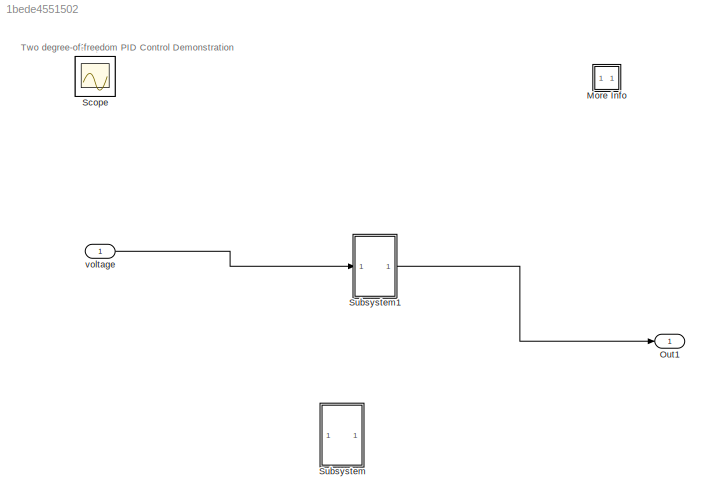
MODEL slx_1bede4551502
KIND model
CONFIG AbsTol = auto
CONFIG EnableMultiTasking = on
CONFIG FixedStep = auto
CONFIG MaxStep = auto
CONFIG MinStep = auto
CONFIG RelTol = 1e-5
CONFIG SampleTimeConstraint = Unconstrained
CONFIG Solver = ode45
CONFIG SolverName = ode45
CONFIG StartTime = 0.0
CONFIG StopTime = 50
BLOCK [SubSystem] More Info
  OpenFcn = showdemo('sldemo_pid2dof')
  Ports = []
  RequestExecContextInheritance = off
  Variant = off
BLOCK [Outport] Out1
  IconDisplay = Port number
BLOCK [Scope] Scope
  IOType = viewer
  NumInputPorts = 1
  Ports = []
  ScopeSpecificationString = Simulink.scopes.TimeScopeBlockCfg('CurrentConfiguration', extmgr.ConfigurationSet(extmgr.Configuration('Core','General UI',true,'FigureColor',[0.156862745098039 0.156862745098039 0.156862745098039]),extmgr.Configuration('Core','Source UI',true),extmgr.Configuration('Sources','WiredSimulink',true,'DataLoggingMaxPoints','100000','DataLoggingSaveFormat','Array','DataLoggingLimitDataPoints',true,'Data...<+1641ch>
BLOCK [Scope] Scope1
  IOType = viewer
  NumInputPorts = 1
  Ports = []
  ScopeSpecificationString = Simulink.scopes.TimeScopeBlockCfg('CurrentConfiguration', extmgr.ConfigurationSet(extmgr.Configuration('Core','General UI',true,'FigureColor',[0.156862745098039 0.156862745098039 0.156862745098039]),extmgr.Configuration('Core','Source UI',true),extmgr.Configuration('Sources','WiredSimulink',true,'DataLoggingVariableName','ScopeData1','DataLoggingMaxPoints','100000','DataLoggingSaveFormat','Array',...<+1733ch>
BLOCK [SubSystem] Subsystem
  Ports = []
  RequestExecContextInheritance = off
  Variant = off
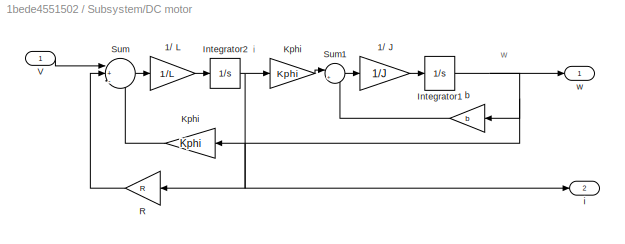
BLOCK [SubSystem] Subsystem/DC motor
  Ports = [1, 2]
  RequestExecContextInheritance = off
  Variant = off
BLOCK [Gain] Subsystem/DC motor/1// J
  Gain = 1/J
  OutDataTypeStr = Inherit: Inherit via internal rule
  ParamDataTypeStr = Inherit: Inherit via internal rule
  SaturateOnIntegerOverflow = off
BLOCK [Gain] Subsystem/DC motor/1// L
  Gain = 1/L
  OutDataTypeStr = Inherit: Inherit via internal rule
  ParamDataTypeStr = Inherit: Inherit via internal rule
  SaturateOnIntegerOverflow = off
BLOCK [Integrator] Subsystem/DC motor/Integrator1
  Ports = [1, 1]
BLOCK [Integrator] Subsystem/DC motor/Integrator2
  Ports = [1, 1]
BLOCK [Gain] Subsystem/DC motor/Kphi
  Gain = Kphi
  OutDataTypeStr = Inherit: Inherit via internal rule
  ParamDataTypeStr = Inherit: Inherit via internal rule
  SaturateOnIntegerOverflow = off
BLOCK [Gain] Subsystem/DC motor/Kphi 
  Gain = Kphi
  OutDataTypeStr = Inherit: Inherit via internal rule
  ParamDataTypeStr = Inherit: Inherit via internal rule
  SaturateOnIntegerOverflow = off
BLOCK [Gain] Subsystem/DC motor/R
  Gain = R
  OutDataTypeStr = Inherit: Inherit via internal rule
  ParamDataTypeStr = Inherit: Inherit via internal rule
  SaturateOnIntegerOverflow = off
BLOCK [Sum] Subsystem/DC motor/Sum
  IconShape = round
  InputSameDT = off
  Inputs = |+--
  OutDataTypeStr = Inherit: Inherit via internal rule
  Ports = [3, 1]
  SaturateOnIntegerOverflow = off
BLOCK [Sum] Subsystem/DC motor/Sum1
  IconShape = round
  InputSameDT = off
  Inputs = |+-
  OutDataTypeStr = Inherit: Inherit via internal rule
  Ports = [2, 1]
  SaturateOnIntegerOverflow = off
BLOCK [Inport] Subsystem/DC motor/V
  IconDisplay = Port number
BLOCK [Gain] Subsystem/DC motor/b
  Gain = b
  OutDataTypeStr = Inherit: Inherit via internal rule
  ParamDataTypeStr = Inherit: Inherit via internal rule
  SaturateOnIntegerOverflow = off
BLOCK [Outport] Subsystem/DC motor/i
  IconDisplay = Port number
  Port = 2
BLOCK [Outport] Subsystem/DC motor/w
  IconDisplay = Port number
BLOCK [Mux] Subsystem/Mux
  DisplayOption = bar
  Inputs = 3
  Ports = [3, 1]
BLOCK [Scope] Subsystem/Scope
  NumInputPorts = 1
  Ports = [1]
  ScopeSpecificationString = Simulink.scopes.TimeScopeBlockCfg('CurrentConfiguration', extmgr.ConfigurationSet(extmgr.Configuration('Core','General UI',true),extmgr.Configuration('Core','Source UI',true),extmgr.Configuration('Sources','WiredSimulink',true,'DataLoggingSaveFormat','StructureWithTime','DataLoggingLimitDataPoints',true,'DataLoggingDecimation','1','DataLoggingDecimateData',true),extmgr.Configuration('Visuals','Tim...<+1716ch>
BLOCK [Constant] Subsystem/Voltage I//P
  Value = 110
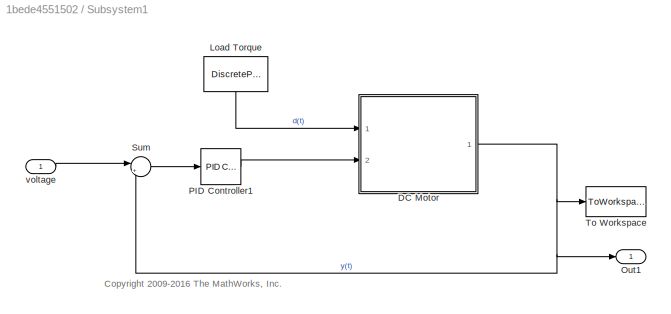
BLOCK [SubSystem] Subsystem1
  Ports = [1, 1]
  RequestExecContextInheritance = off
  Variant = off
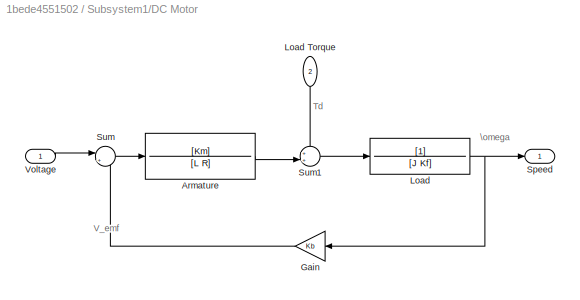
BLOCK [SubSystem] Subsystem1/DC Motor
  Ports = [2, 1]
  RequestExecContextInheritance = off
  Variant = off
BLOCK [TransferFcn] Subsystem1/DC Motor/Armature
  Denominator = [L R]
  Numerator = [Km]
BLOCK [Gain] Subsystem1/DC Motor/Gain
  Gain = Kb
  OutDataTypeStr = Inherit: Inherit via internal rule
  ParamDataTypeStr = Inherit: Inherit via internal rule
  SaturateOnIntegerOverflow = off
BLOCK [TransferFcn] Subsystem1/DC Motor/Load
  Denominator = [J Kf]
BLOCK [Inport] Subsystem1/DC Motor/Load Torque
  IconDisplay = Port number
  Port = 2
BLOCK [Outport] Subsystem1/DC Motor/Speed
  IconDisplay = Port number
BLOCK [Sum] Subsystem1/DC Motor/Sum
  IconShape = round
  InputSameDT = off
  Inputs = |+-
  OutDataTypeStr = Inherit: Inherit via internal rule
  Ports = [2, 1]
  SaturateOnIntegerOverflow = off
BLOCK [Sum] Subsystem1/DC Motor/Sum1
  IconShape = round
  InputSameDT = off
  Inputs = ++|
  OutDataTypeStr = Inherit: Inherit via internal rule
  Ports = [2, 1]
  SaturateOnIntegerOverflow = off
BLOCK [Inport] Subsystem1/DC Motor/Voltage
  IconDisplay = Port number
BLOCK [DiscretePulseGenerator] Subsystem1/Load Torque
  Amplitude = -20
  Period = 100
  Ports = [0, 1]
  PulseType = Time based
  PulseWidth = 50
BLOCK [Outport] Subsystem1/Out1
  IconDisplay = Port number
BLOCK [Reference] Subsystem1/PID Controller1  REF=simulink/Continuous/PID Controller
  Ports = [1, 1]
  SourceBlock = simulink/Continuous/PID Controller
  SourceProductBaseCode = SL
  SourceProductName = Simulink
  SourceType = PID 1dof
BLOCK [Sum] Subsystem1/Sum
  IconShape = round
  InputSameDT = off
  Inputs = |+-
  OutDataTypeStr = Inherit: Inherit via internal rule
  Ports = [2, 1]
  SaturateOnIntegerOverflow = off
BLOCK [ToWorkspace] Subsystem1/To Workspace
  FixptAsFi = on
  MaxDataPoints = inf
  Ports = [1]
  SampleTime = -1
  Save2DSignal = 3-D array (concatenate along third dimension)
  SaveFormat = Structure With Time
  VariableName = simout
BLOCK [Inport] Subsystem1/voltage 
  IconDisplay = Port number
BLOCK [Inport] voltage 
  IconDisplay = Port number
ANNOTATION (root): Two degree-of-freedom PID Control Demonstration
ANNOTATION Subsystem: Author: Wesam ELSHAMY <email>
ANNOTATION Subsystem: DC Motor model
ANNOTATION Subsystem/DC motor: i
ANNOTATION Subsystem/DC motor: w
ANNOTATION Subsystem1: <copyright redacted>
ANNOTATION Subsystem1/DC Motor: Td
ANNOTATION Subsystem1/DC Motor: V_emf
ANNOTATION Subsystem1/DC Motor: \omega
LINE Subsystem/DC motor/1// J:1 -> Subsystem/DC motor/Integrator1:1
LINE Subsystem/DC motor/1// L:1 -> Subsystem/DC motor/Integrator2:1
NET Subsystem/DC motor/Integrator1:1 -> Subsystem/DC motor/Kphi :1, Subsystem/DC motor/b:1, Subsystem/DC motor/w:1
NET Subsystem/DC motor/Integrator2:1 -> Subsystem/DC motor/Kphi:1, Subsystem/DC motor/R:1, Subsystem/DC motor/i:1
LINE Subsystem/DC motor/Kphi :1 -> Subsystem/DC motor/Sum:3
LINE Subsystem/DC motor/Kphi:1 -> Subsystem/DC motor/Sum1:1
LINE Subsystem/DC motor/R:1 -> Subsystem/DC motor/Sum:2
LINE Subsystem/DC motor/Sum1:1 -> Subsystem/DC motor/1// J:1
LINE Subsystem/DC motor/Sum:1 -> Subsystem/DC motor/1// L:1
LINE Subsystem/DC motor/V:1 -> Subsystem/DC motor/Sum:1
LINE Subsystem/DC motor/b:1 -> Subsystem/DC motor/Sum1:2
LINE Subsystem/DC motor:1 -> Subsystem/Mux:1
LINE Subsystem/DC motor:2 -> Subsystem/Mux:2
LINE Subsystem/Mux:1 -> Subsystem/Scope:1
NET Subsystem/Voltage I//P:1 -> Subsystem/DC motor:1, Subsystem/Mux:3
LINE Subsystem1/DC Motor/Armature:1 -> Subsystem1/DC Motor/Sum1:2
LINE Subsystem1/DC Motor/Gain:1 -> Subsystem1/DC Motor/Sum:2
LINE Subsystem1/DC Motor/Load Torque:1 -> Subsystem1/DC Motor/Sum1:1
NET Subsystem1/DC Motor/Load:1 -> Subsystem1/DC Motor/Gain:1, Subsystem1/DC Motor/Speed:1
LINE Subsystem1/DC Motor/Sum1:1 -> Subsystem1/DC Motor/Load:1
LINE Subsystem1/DC Motor/Sum:1 -> Subsystem1/DC Motor/Armature:1
LINE Subsystem1/DC Motor/Voltage:1 -> Subsystem1/DC Motor/Sum:1
NET Subsystem1/DC Motor:1 -> Subsystem1/Out1:1, Subsystem1/Sum:2, Subsystem1/To Workspace:1
LINE Subsystem1/Load Torque:1 -> Subsystem1/DC Motor:1
LINE Subsystem1/PID Controller1:1 -> Subsystem1/DC Motor:2
LINE Subsystem1/Sum:1 -> Subsystem1/PID Controller1:1
LINE Subsystem1/voltage :1 -> Subsystem1/Sum:1
LINE Subsystem1:1 -> Out1:1
LINE voltage :1 -> Subsystem1:1
note: NET lines group one-source signal fan-out (src -> all destinations, sorted); 1:1 wires keep LINE
